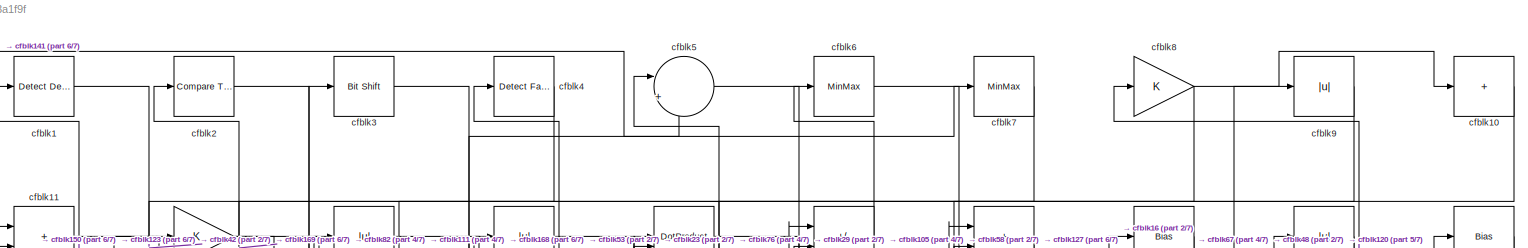
[diagram: root canvas - part 1/7, full width, top band]
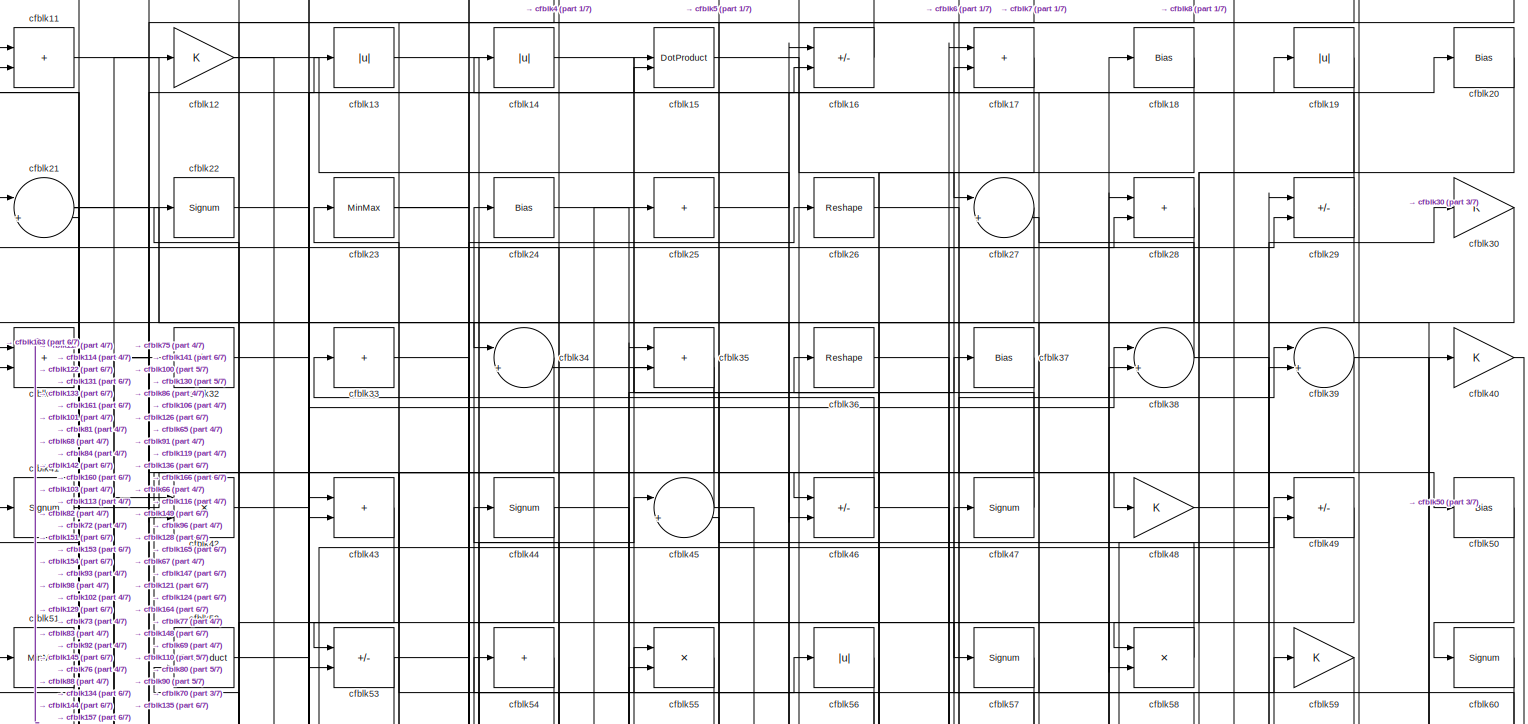
[diagram: root canvas - part 2/7, full width, top band]
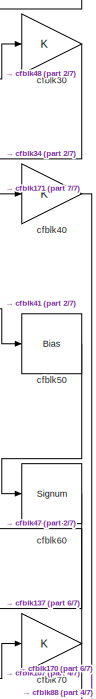
[diagram: root canvas - part 3/7, top right region]
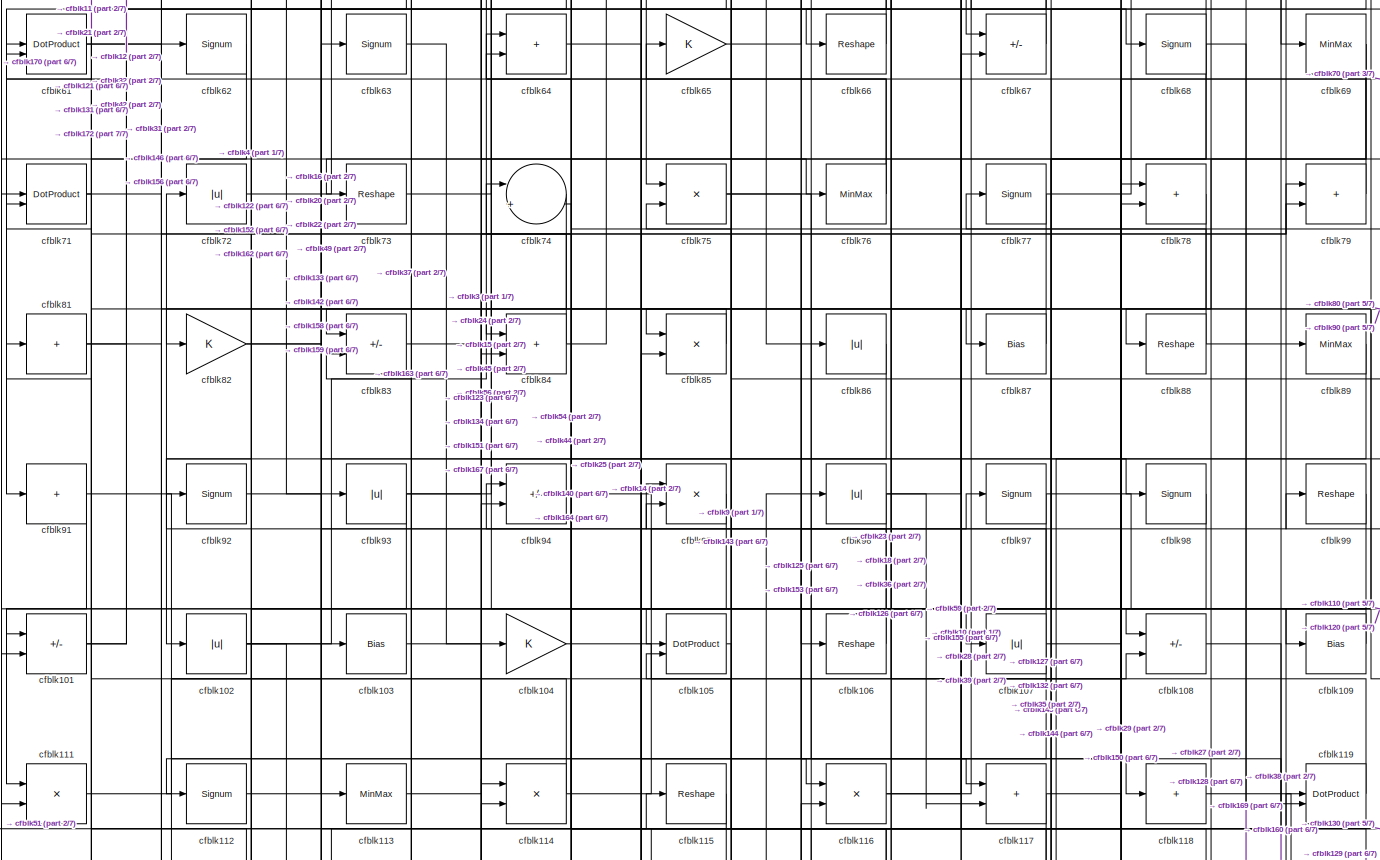
[diagram: root canvas - part 4/7, full width, middle band]
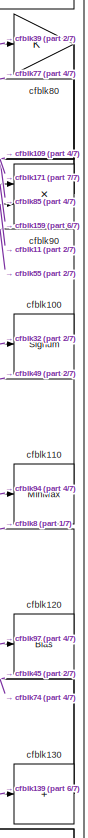
[diagram: root canvas - part 5/7, middle right region]
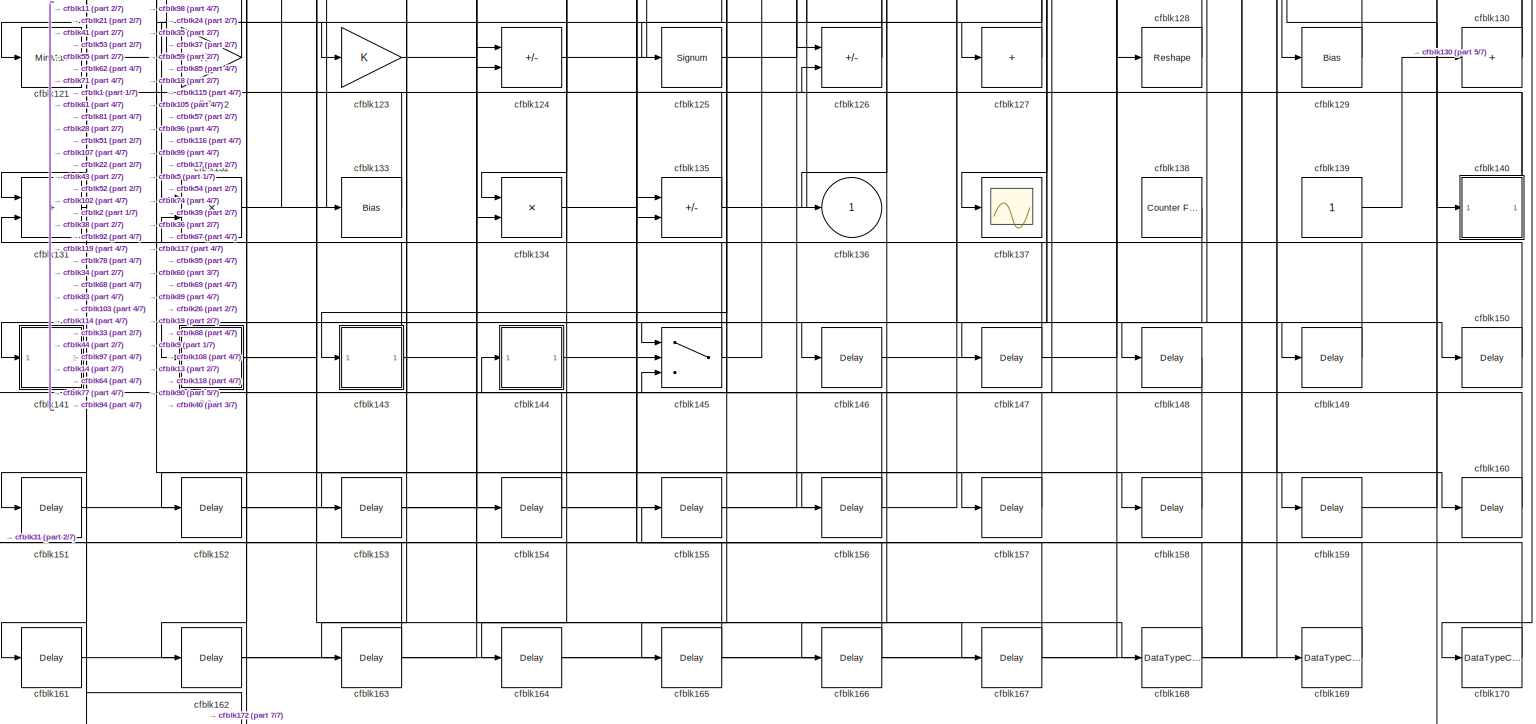
[diagram: root canvas - part 6/7, full width, bottom band]
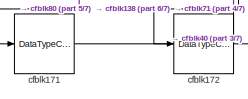
[diagram: root canvas - part 7/7, bottom left region]
MODEL slx_3cc2a13a1f9f
KIND model
CONFIG AbsTol = auto
CONFIG EnableMultiTasking = off
CONFIG FixedStep = auto
CONFIG MaxStep = auto
CONFIG MinStep = auto
CONFIG RelTol = 1e-3
CONFIG SampleTimeConstraint = Unconstrained
CONFIG SolverName = VariableStepAuto
CONFIG StartTime = 0.0
CONFIG StopTime = 10.0
BLOCK [Reference] cfblk1  REF=simulink/Logic and Bit
Operations/Detect
Decrease
  LibrarySourceBlock = hdlsllib/Logic and Bit\nOperations/Detect\nDecrease
  SourceBlock = simulink/Logic and Bit\nOperations/Detect\nDecrease
  SourceType = Detect Decrease
BLOCK [Sum] cfblk10
  IconShape = rectangular
  Inputs = +
BLOCK [Signum] cfblk100
BLOCK [Sum] cfblk101
  IconShape = rectangular
  Inputs = +-
BLOCK [Abs] cfblk102
  SaturateOnIntegerOverflow = off
BLOCK [Bias] cfblk103
  Bias = 0.0
  SaturateOnIntegerOverflow = off
BLOCK [Gain] cfblk104
BLOCK [DotProduct] cfblk105
  OutDataTypeStr = Inherit: Inherit via internal rule
BLOCK [Reshape] cfblk106
BLOCK [Abs] cfblk107
  SaturateOnIntegerOverflow = off
BLOCK [Sum] cfblk108
  IconShape = rectangular
  Inputs = +-
BLOCK [Bias] cfblk109
  Bias = 0.0
  SaturateOnIntegerOverflow = off
BLOCK [Sum] cfblk11
  IconShape = rectangular
BLOCK [MinMax] cfblk110
BLOCK [Product] cfblk111
  Inputs = */
  RndMeth = Zero
  SaturateOnIntegerOverflow = on
BLOCK [Signum] cfblk112
BLOCK [MinMax] cfblk113
BLOCK [Product] cfblk114
  Inputs = */
  RndMeth = Zero
  SaturateOnIntegerOverflow = on
BLOCK [Reshape] cfblk115
BLOCK [Product] cfblk116
  Inputs = */
  RndMeth = Zero
  SaturateOnIntegerOverflow = on
BLOCK [Sum] cfblk117
  IconShape = rectangular
BLOCK [Sum] cfblk118
  IconShape = rectangular
  Inputs = +
BLOCK [DotProduct] cfblk119
  OutDataTypeStr = Inherit: Inherit via internal rule
BLOCK [Gain] cfblk12
BLOCK [Bias] cfblk120
  Bias = 0.0
  SaturateOnIntegerOverflow = off
BLOCK [MinMax] cfblk121
BLOCK [Gain] cfblk122
BLOCK [Gain] cfblk123
BLOCK [Sum] cfblk124
  IconShape = rectangular
  Inputs = +-
BLOCK [Signum] cfblk125
BLOCK [Sum] cfblk126
  IconShape = rectangular
  Inputs = +-
BLOCK [Sum] cfblk127
  IconShape = rectangular
  Inputs = +
BLOCK [Reshape] cfblk128
BLOCK [Bias] cfblk129
  Bias = 0.0
  SaturateOnIntegerOverflow = off
BLOCK [Abs] cfblk13
  SaturateOnIntegerOverflow = off
BLOCK [Sum] cfblk130
  IconShape = rectangular
  Inputs = +
BLOCK [Sum] cfblk131
  IconShape = rectangular
BLOCK [Product] cfblk132
  Inputs = */
  RndMeth = Zero
  SaturateOnIntegerOverflow = on
BLOCK [Bias] cfblk133
  Bias = 0.0
  SaturateOnIntegerOverflow = off
BLOCK [Product] cfblk134
  Inputs = */
  RndMeth = Zero
  SaturateOnIntegerOverflow = on
BLOCK [Sum] cfblk135
  IconShape = rectangular
  Inputs = +-
BLOCK [Outport] cfblk136
  VectorParamsAs1DForOutWhenUnconnected = off
BLOCK [Scope] cfblk137
  Floating = off
  NumInputPorts = 1
  ScopeSpecificationString = Simulink.scopes.TimeScopeBlockCfg('CurrentConfiguration', extmgr.ConfigurationSet(extmgr.Configuration('Core','General UI',true),extmgr.Configuration('Core','Source UI',true),extmgr.Configuration('Sources','WiredSimulink',true,'DataLoggingVariableName','ScopeData2','DataLoggingSaveFormat','Array','DataLoggingLimitDataPoints',true,'DataLoggingDecimation','1'),extmgr.Configuration('Visuals','Time Do...<+868ch>
BLOCK [Reference] cfblk138  REF=hdlsllib/Sources/Counter
Free-Running
  SourceBlock = hdlsllib/Sources/Counter\nFree-Running
  SourceType = Counter Free-Running
BLOCK [Constant] cfblk139
  SampleTime = -1
BLOCK [Abs] cfblk14
  SaturateOnIntegerOverflow = off
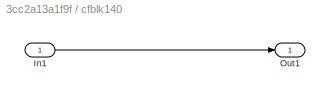
BLOCK [SubSystem] cfblk140
  LibrarySourceBlock = hdlsllib/Ports &\nSubsystems/Subsystem
BLOCK [Inport] cfblk140/In1
BLOCK [Outport] cfblk140/Out1
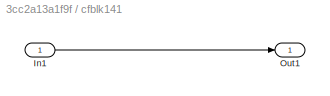
BLOCK [SubSystem] cfblk141
  LibrarySourceBlock = hdlsllib/Ports &\nSubsystems/Subsystem
BLOCK [Inport] cfblk141/In1
BLOCK [Outport] cfblk141/Out1
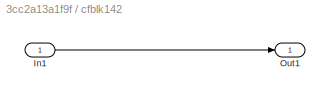
BLOCK [SubSystem] cfblk142
  LibrarySourceBlock = hdlsllib/Ports &\nSubsystems/Subsystem
BLOCK [Inport] cfblk142/In1
BLOCK [Outport] cfblk142/Out1
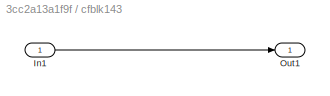
BLOCK [SubSystem] cfblk143
  LibrarySourceBlock = hdlsllib/Ports &\nSubsystems/Subsystem
BLOCK [Inport] cfblk143/In1
BLOCK [Outport] cfblk143/Out1
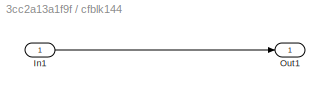
BLOCK [SubSystem] cfblk144
  LibrarySourceBlock = hdlsllib/Ports &\nSubsystems/Subsystem
BLOCK [Inport] cfblk144/In1
BLOCK [Outport] cfblk144/Out1
BLOCK [Switch] cfblk145
  InputSameDT = off
  SaturateOnIntegerOverflow = off
BLOCK [Delay] cfblk146
  InputPortMap = u0
  SampleTime = 1
BLOCK [Delay] cfblk147
  InputPortMap = u0
  SampleTime = 1
BLOCK [Delay] cfblk148
  InputPortMap = u0
  SampleTime = 1
BLOCK [Delay] cfblk149
  InputPortMap = u0
  SampleTime = 1
BLOCK [DotProduct] cfblk15
  OutDataTypeStr = Inherit: Inherit via internal rule
BLOCK [Delay] cfblk150
  InputPortMap = u0
  SampleTime = 1
BLOCK [Delay] cfblk151
  InputPortMap = u0
  SampleTime = 1
BLOCK [Delay] cfblk152
  InputPortMap = u0
  SampleTime = 1
BLOCK [Delay] cfblk153
  InputPortMap = u0
  SampleTime = 1
BLOCK [Delay] cfblk154
  InputPortMap = u0
  SampleTime = 1
BLOCK [Delay] cfblk155
  InputPortMap = u0
  SampleTime = 1
BLOCK [Delay] cfblk156
  InputPortMap = u0
  SampleTime = 1
BLOCK [Delay] cfblk157
  InputPortMap = u0
  SampleTime = 1
BLOCK [Delay] cfblk158
  InputPortMap = u0
  SampleTime = 1
BLOCK [Delay] cfblk159
  InputPortMap = u0
  SampleTime = 1
BLOCK [Sum] cfblk16
  IconShape = rectangular
  Inputs = +-
BLOCK [Delay] cfblk160
  InputPortMap = u0
  SampleTime = 1
BLOCK [Delay] cfblk161
  InputPortMap = u0
  SampleTime = 1
BLOCK [Delay] cfblk162
  InputPortMap = u0
  SampleTime = 1
BLOCK [Delay] cfblk163
  InputPortMap = u0
  SampleTime = 1
BLOCK [Delay] cfblk164
  InputPortMap = u0
  SampleTime = 1
BLOCK [Delay] cfblk165
  InputPortMap = u0
  SampleTime = 1
BLOCK [Delay] cfblk166
  InputPortMap = u0
  SampleTime = 1
BLOCK [Delay] cfblk167
  InputPortMap = u0
  SampleTime = 1
BLOCK [DataTypeConversion] cfblk168
  RndMeth = Floor
  SaturateOnIntegerOverflow = off
BLOCK [DataTypeConversion] cfblk169
  OutDataTypeStr = uint8
  RndMeth = Floor
  SaturateOnIntegerOverflow = off
BLOCK [Sum] cfblk17
  IconShape = rectangular
BLOCK [DataTypeConversion] cfblk170
  OutDataTypeStr = uint8
  RndMeth = Floor
  SaturateOnIntegerOverflow = off
BLOCK [DataTypeConversion] cfblk171
  OutDataTypeStr = uint8
  RndMeth = Floor
  SaturateOnIntegerOverflow = off
BLOCK [DataTypeConversion] cfblk172
  OutDataTypeStr = uint8
  RndMeth = Floor
  SaturateOnIntegerOverflow = off
BLOCK [Bias] cfblk18
  Bias = 0.0
  SaturateOnIntegerOverflow = off
BLOCK [Abs] cfblk19
  SaturateOnIntegerOverflow = off
BLOCK [Reference] cfblk2  REF=hdlsllib/Logic and Bit
Operations/Compare
To Zero
  SourceBlock = hdlsllib/Logic and Bit\nOperations/Compare\nTo Zero
  SourceType = Compare To Zero
BLOCK [Bias] cfblk20
  Bias = 0.0
  SaturateOnIntegerOverflow = off
BLOCK [Sum] cfblk21
  Inputs = |++
BLOCK [Signum] cfblk22
BLOCK [MinMax] cfblk23
BLOCK [Bias] cfblk24
  Bias = 0.0
  SaturateOnIntegerOverflow = off
BLOCK [Sum] cfblk25
  IconShape = rectangular
  Inputs = +
BLOCK [Reshape] cfblk26
BLOCK [Sum] cfblk27
  Inputs = |++
BLOCK [Sum] cfblk28
  IconShape = rectangular
BLOCK [Sum] cfblk29
  IconShape = rectangular
  Inputs = +-
BLOCK [Reference] cfblk3  REF=hdlsllib/Logic and Bit
Operations/Bit Shift
  SourceBlock = hdlsllib/Logic and Bit\nOperations/Bit Shift
  SourceType = Bit Shift
BLOCK [Gain] cfblk30
BLOCK [Sum] cfblk31
  IconShape = rectangular
BLOCK [Bias] cfblk32
  Bias = 0.0
  SaturateOnIntegerOverflow = off
BLOCK [Sum] cfblk33
  IconShape = rectangular
  Inputs = +
BLOCK [Sum] cfblk34
  Inputs = |++
BLOCK [Sum] cfblk35
  IconShape = rectangular
BLOCK [Reshape] cfblk36
BLOCK [Bias] cfblk37
  Bias = 0.0
  SaturateOnIntegerOverflow = off
BLOCK [Sum] cfblk38
  Inputs = |++
BLOCK [Sum] cfblk39
  Inputs = |++
BLOCK [Reference] cfblk4  REF=hdlsllib/Logic and Bit
Operations/Detect Fall
Nonpositive
  SourceBlock = hdlsllib/Logic and Bit\nOperations/Detect Fall\nNonpositive
  SourceType = Detect Fall Nonpositive
BLOCK [Gain] cfblk40
BLOCK [Signum] cfblk41
BLOCK [Product] cfblk42
  Inputs = */
  RndMeth = Zero
  SaturateOnIntegerOverflow = on
BLOCK [Sum] cfblk43
  IconShape = rectangular
BLOCK [Signum] cfblk44
BLOCK [Sum] cfblk45
  Inputs = |++
BLOCK [Sum] cfblk46
  IconShape = rectangular
  Inputs = +-
BLOCK [Signum] cfblk47
BLOCK [Gain] cfblk48
BLOCK [Sum] cfblk49
  IconShape = rectangular
  Inputs = +-
BLOCK [Sum] cfblk5
  Inputs = |++
BLOCK [Bias] cfblk50
  Bias = 0.0
  SaturateOnIntegerOverflow = off
BLOCK [MinMax] cfblk51
BLOCK [DotProduct] cfblk52
  OutDataTypeStr = Inherit: Inherit via internal rule
BLOCK [Sum] cfblk53
  IconShape = rectangular
  Inputs = +-
BLOCK [Sum] cfblk54
  IconShape = rectangular
  Inputs = +
BLOCK [Product] cfblk55
  Inputs = */
  RndMeth = Zero
  SaturateOnIntegerOverflow = on
BLOCK [Abs] cfblk56
  SaturateOnIntegerOverflow = off
BLOCK [Signum] cfblk57
BLOCK [Product] cfblk58
  Inputs = */
  RndMeth = Zero
  SaturateOnIntegerOverflow = on
BLOCK [Gain] cfblk59
BLOCK [MinMax] cfblk6
BLOCK [Signum] cfblk60
BLOCK [DotProduct] cfblk61
  OutDataTypeStr = Inherit: Inherit via internal rule
BLOCK [Signum] cfblk62
BLOCK [Signum] cfblk63
BLOCK [Sum] cfblk64
  IconShape = rectangular
BLOCK [Gain] cfblk65
BLOCK [Reshape] cfblk66
BLOCK [Sum] cfblk67
  IconShape = rectangular
  Inputs = +-
BLOCK [Signum] cfblk68
BLOCK [MinMax] cfblk69
BLOCK [MinMax] cfblk7
BLOCK [Gain] cfblk70
BLOCK [DotProduct] cfblk71
  OutDataTypeStr = Inherit: Inherit via internal rule
BLOCK [Abs] cfblk72
  SaturateOnIntegerOverflow = off
BLOCK [Reshape] cfblk73
BLOCK [Sum] cfblk74
  Inputs = |++
BLOCK [Product] cfblk75
  Inputs = */
  RndMeth = Zero
  SaturateOnIntegerOverflow = on
BLOCK [MinMax] cfblk76
BLOCK [Signum] cfblk77
BLOCK [Sum] cfblk78
  IconShape = rectangular
BLOCK [Sum] cfblk79
  IconShape = rectangular
BLOCK [Gain] cfblk8
BLOCK [Gain] cfblk80
BLOCK [Sum] cfblk81
  IconShape = rectangular
  Inputs = +
BLOCK [Gain] cfblk82
BLOCK [Sum] cfblk83
  IconShape = rectangular
  Inputs = +-
BLOCK [Sum] cfblk84
  IconShape = rectangular
BLOCK [Product] cfblk85
  Inputs = */
  RndMeth = Zero
  SaturateOnIntegerOverflow = on
BLOCK [Abs] cfblk86
  SaturateOnIntegerOverflow = off
BLOCK [Bias] cfblk87
  Bias = 0.0
  SaturateOnIntegerOverflow = off
BLOCK [Reshape] cfblk88
BLOCK [MinMax] cfblk89
BLOCK [Abs] cfblk9
  SaturateOnIntegerOverflow = off
BLOCK [Product] cfblk90
  Inputs = */
  RndMeth = Zero
  SaturateOnIntegerOverflow = on
BLOCK [Sum] cfblk91
  IconShape = rectangular
  Inputs = +
BLOCK [Signum] cfblk92
BLOCK [Abs] cfblk93
  SaturateOnIntegerOverflow = off
BLOCK [Sum] cfblk94
  IconShape = rectangular
  Inputs = +-
BLOCK [Product] cfblk95
  Inputs = */
  RndMeth = Zero
  SaturateOnIntegerOverflow = on
BLOCK [Abs] cfblk96
  SaturateOnIntegerOverflow = off
BLOCK [Signum] cfblk97
BLOCK [Signum] cfblk98
BLOCK [Reshape] cfblk99
LINE cfblk100:1 -> cfblk55:1
NET cfblk101:1 -> cfblk32:1, cfblk42:1
NET cfblk102:1 -> cfblk133:1, cfblk158:1, cfblk24:1
LINE cfblk103:1 -> cfblk167:1
LINE cfblk104:1 -> cfblk108:2
LINE cfblk105:1 -> cfblk143:1
LINE cfblk106:1 -> cfblk72:1
NET cfblk107:1 -> cfblk122:1, cfblk70:1, cfblk75:2
LINE cfblk108:1 -> cfblk160:1
LINE cfblk109:1 -> cfblk108:1
LINE cfblk10:1 -> cfblk67:1
LINE cfblk110:1 -> cfblk49:2
LINE cfblk111:1 -> cfblk3:1
LINE cfblk112:1 -> cfblk63:1
LINE cfblk113:1 -> cfblk79:1
NET cfblk114:1 -> cfblk11:2, cfblk97:1
LINE cfblk115:1 -> cfblk125:1
NET cfblk116:1 -> cfblk28:2, cfblk39:1
NET cfblk117:1 -> cfblk132:1, cfblk150:1
LINE cfblk118:1 -> cfblk140:1
LINE cfblk119:1 -> cfblk36:1
LINE cfblk11:1 -> cfblk90:2
LINE cfblk120:1 -> cfblk8:1
LINE cfblk121:1 -> cfblk28:1
LINE cfblk122:1 -> cfblk51:1
LINE cfblk123:1 -> cfblk114:2
LINE cfblk124:1 -> cfblk18:1
LINE cfblk125:1 -> cfblk99:1
NET cfblk126:1 -> cfblk54:1, cfblk74:1
LINE cfblk127:1 -> cfblk95:1
LINE cfblk128:1 -> cfblk61:1
LINE cfblk129:1 -> cfblk64:2
NET cfblk12:1 -> cfblk106:1, cfblk93:1
NET cfblk130:1 -> cfblk45:2, cfblk74:2
LINE cfblk131:1 -> cfblk11:1
NET cfblk132:1 -> cfblk119:1, cfblk78:1
LINE cfblk133:1 -> cfblk41:1
LINE cfblk134:1 -> cfblk37:1
NET cfblk135:1 -> cfblk17:1, cfblk22:1
LINE cfblk138:1 -> cfblk172:1
LINE cfblk139:1 -> cfblk130:1
LINE cfblk13:1 -> cfblk129:1
LINE cfblk140/In1:1 -> cfblk140/Out1:1
NET cfblk140:1 -> cfblk64:1, cfblk94:1
LINE cfblk141/In1:1 -> cfblk141/Out1:1
LINE cfblk141:1 -> cfblk5:2
LINE cfblk142/In1:1 -> cfblk142/Out1:1
NET cfblk142:1 -> cfblk38:1, cfblk95:2
LINE cfblk143/In1:1 -> cfblk143/Out1:1
NET cfblk143:1 -> cfblk126:2, cfblk81:1
LINE cfblk144/In1:1 -> cfblk144/Out1:1
LINE cfblk144:1 -> cfblk55:2
NET cfblk145:1 -> cfblk14:1, cfblk96:1
LINE cfblk146:1 -> cfblk78:2
LINE cfblk147:1 -> cfblk132:2
LINE cfblk148:1 -> cfblk145:3
LINE cfblk149:1 -> cfblk35:1
LINE cfblk14:1 -> cfblk75:1
LINE cfblk150:1 -> cfblk1:1
LINE cfblk151:1 -> cfblk94:2
LINE cfblk152:1 -> cfblk85:2
LINE cfblk153:1 -> cfblk116:2
LINE cfblk154:1 -> cfblk131:2
LINE cfblk155:1 -> cfblk67:2
LINE cfblk156:1 -> cfblk105:2
LINE cfblk157:1 -> cfblk124:1
LINE cfblk158:1 -> cfblk83:2
LINE cfblk159:1 -> cfblk90:1
LINE cfblk15:1 -> cfblk27:1
LINE cfblk160:1 -> cfblk52:2
LINE cfblk161:1 -> cfblk39:2
LINE cfblk162:1 -> cfblk114:1
LINE cfblk163:1 -> cfblk31:1
LINE cfblk164:1 -> cfblk38:2
LINE cfblk165:1 -> cfblk43:1
LINE cfblk166:1 -> cfblk135:1
LINE cfblk167:1 -> cfblk145:2
NET cfblk168:1 -> cfblk155:1, cfblk9:1
LINE cfblk169:1 -> cfblk2:1
LINE cfblk16:1 -> cfblk6:1
LINE cfblk170:1 -> cfblk71:1
LINE cfblk171:1 -> cfblk40:1
LINE cfblk172:1 -> cfblk71:2
LINE cfblk17:1 -> cfblk166:1
LINE cfblk18:1 -> cfblk66:1
LINE cfblk19:1 -> cfblk148:1
LINE cfblk1:1 -> cfblk123:1
LINE cfblk20:1 -> cfblk58:1
NET cfblk21:1 -> cfblk126:1, cfblk161:1, cfblk46:2
LINE cfblk22:1 -> cfblk103:1
NET cfblk23:1 -> cfblk7:1, cfblk98:1
LINE cfblk24:1 -> cfblk157:1
LINE cfblk25:1 -> cfblk19:1
LINE cfblk26:1 -> cfblk128:1
LINE cfblk27:1 -> cfblk46:1
LINE cfblk28:1 -> cfblk147:1
NET cfblk29:1 -> cfblk31:2, cfblk4:1
LINE cfblk2:1 -> cfblk168:1
LINE cfblk30:1 -> cfblk34:1
NET cfblk31:1 -> cfblk13:1, cfblk68:1, cfblk84:2
LINE cfblk32:1 -> cfblk100:1
LINE cfblk33:1 -> cfblk154:1
LINE cfblk34:1 -> cfblk153:1
LINE cfblk35:1 -> cfblk52:1
LINE cfblk36:1 -> cfblk149:1
LINE cfblk37:1 -> cfblk73:1
NET cfblk38:1 -> cfblk17:2, cfblk69:1
NET cfblk39:1 -> cfblk136:1, cfblk80:1
LINE cfblk3:1 -> cfblk76:1
LINE cfblk40:1 -> cfblk170:1
LINE cfblk41:1 -> cfblk50:1
LINE cfblk42:1 -> cfblk113:1
LINE cfblk43:1 -> cfblk142:1
NET cfblk44:1 -> cfblk124:2, cfblk57:1
NET cfblk45:1 -> cfblk34:2, cfblk86:1
NET cfblk46:1 -> cfblk33:1, cfblk58:2
LINE cfblk47:1 -> cfblk15:1
LINE cfblk48:1 -> cfblk30:1
LINE cfblk49:1 -> cfblk53:2
LINE cfblk4:1 -> cfblk82:1
LINE cfblk50:1 -> cfblk60:1
LINE cfblk51:1 -> cfblk115:1
LINE cfblk52:1 -> cfblk43:2
NET cfblk53:1 -> cfblk151:1, cfblk26:1
LINE cfblk54:1 -> cfblk92:1
LINE cfblk55:1 -> cfblk141:1
LINE cfblk56:1 -> cfblk91:1
LINE cfblk57:1 -> cfblk165:1
LINE cfblk58:1 -> cfblk5:1
LINE cfblk59:1 -> cfblk135:2
LINE cfblk5:1 -> cfblk127:1
LINE cfblk60:1 -> cfblk137:1
NET cfblk61:1 -> cfblk146:1, cfblk62:1
LINE cfblk62:1 -> cfblk121:1
LINE cfblk63:1 -> cfblk104:1
LINE cfblk64:1 -> cfblk117:1
LINE cfblk65:1 -> cfblk16:1
LINE cfblk66:1 -> cfblk23:1
LINE cfblk67:1 -> cfblk35:2
NET cfblk68:1 -> cfblk107:1, cfblk163:1, cfblk27:2, cfblk89:1
NET cfblk69:1 -> cfblk111:2, cfblk145:1
LINE cfblk6:1 -> cfblk48:1
NET cfblk70:1 -> cfblk47:1, cfblk88:1
NET cfblk71:1 -> cfblk131:1, cfblk79:2
LINE cfblk72:1 -> cfblk49:1
LINE cfblk73:1 -> cfblk56:1
LINE cfblk74:1 -> cfblk112:1
NET cfblk75:1 -> cfblk118:1, cfblk119:2
NET cfblk76:1 -> cfblk21:2, cfblk44:1
NET cfblk77:1 -> cfblk164:1, cfblk29:1
LINE cfblk78:1 -> cfblk87:1
LINE cfblk79:1 -> cfblk65:1
LINE cfblk7:1 -> cfblk53:1
NET cfblk80:1 -> cfblk109:1, cfblk171:1
NET cfblk81:1 -> cfblk12:1, cfblk156:1
NET cfblk82:1 -> cfblk16:2, cfblk20:1
LINE cfblk83:1 -> cfblk29:2
NET cfblk84:1 -> cfblk25:1, cfblk61:2
LINE cfblk85:1 -> cfblk83:1
LINE cfblk86:1 -> cfblk102:1
LINE cfblk87:1 -> cfblk84:1
NET cfblk88:1 -> cfblk169:1, cfblk21:1
LINE cfblk89:1 -> cfblk144:1
NET cfblk8:1 -> cfblk10:1, cfblk42:2
NET cfblk90:1 -> cfblk77:1, cfblk85:1
NET cfblk91:1 -> cfblk101:2, cfblk116:1
LINE cfblk92:1 -> cfblk159:1
NET cfblk93:1 -> cfblk101:1, cfblk15:2, cfblk45:1
LINE cfblk94:1 -> cfblk110:1
LINE cfblk95:1 -> cfblk152:1
NET cfblk96:1 -> cfblk111:1, cfblk117:2, cfblk59:1
NET cfblk97:1 -> cfblk120:1, cfblk134:2
LINE cfblk98:1 -> cfblk134:1
LINE cfblk99:1 -> cfblk162:1
LINE cfblk9:1 -> cfblk105:1
note: NET lines group one-source signal fan-out (src -> all destinations, sorted); 1:1 wires keep LINE
